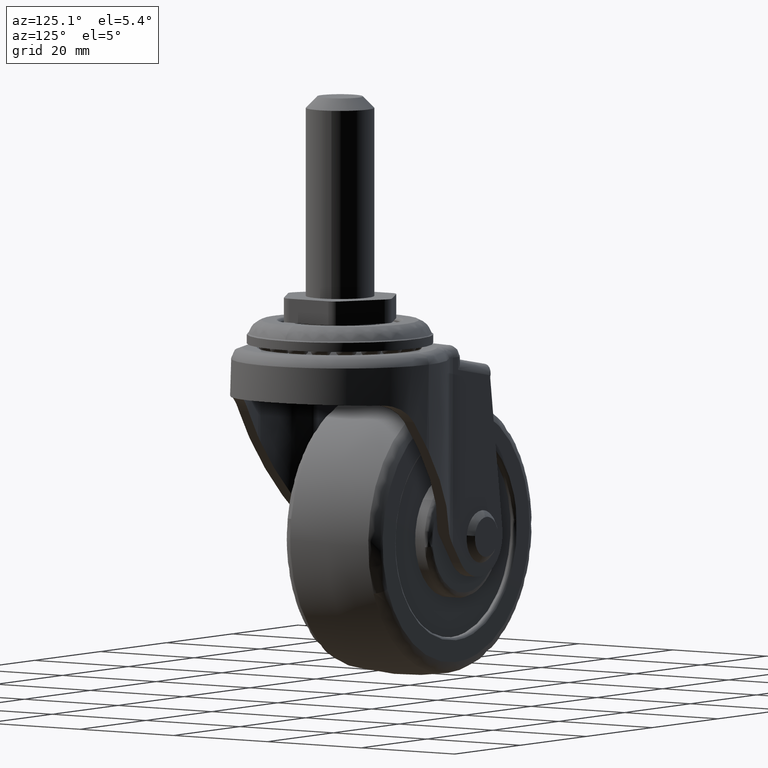
[diagram: clean part render]
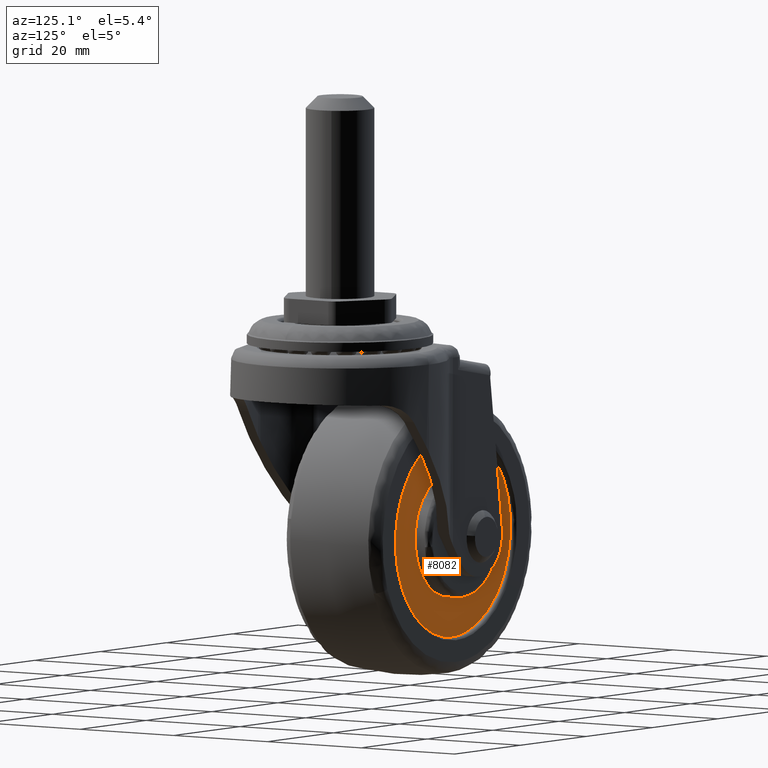
[diagram: same view with one face highlighted and labeled with its STEP entity id]
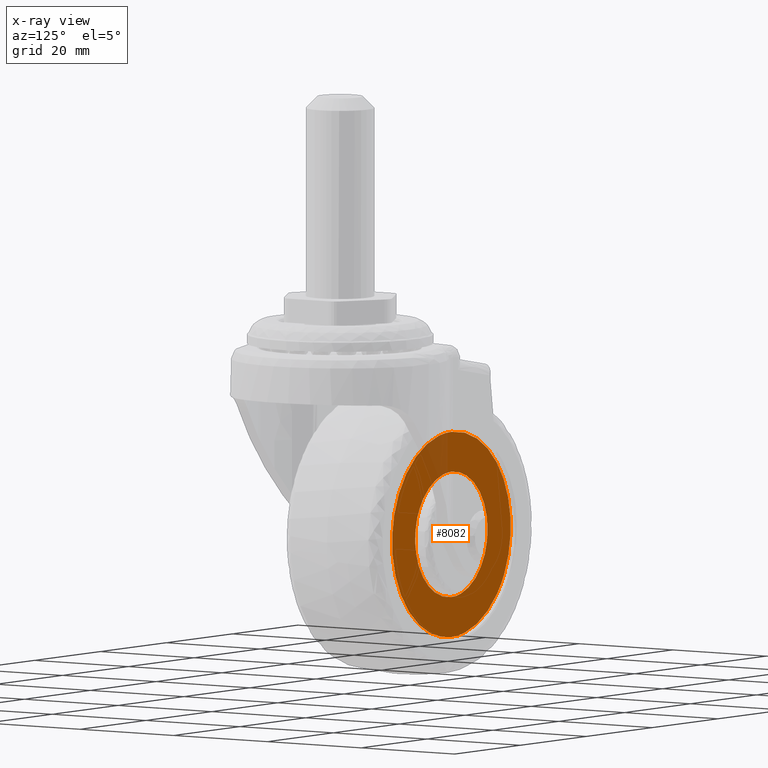
[diagram: x-ray of the same camera — body ghosted, the highlighted face saturated]
A machine part, auxiliary view. The second image highlights one B-rep face of the part: STEP entity #8082.
The next image is the same camera in x-ray: the body ghosted, the highlighted face saturated — about 7% of this face is hidden behind the body in this view.
In plain terms, the highlighted face is a freeform B-spline surface patch.
Its self-contained STEP definition (entity closure, byte-faithful):
#5860=CARTESIAN_POINT('',(9.769116370737223,9.0,-15.118345323975770));
#5861=VERTEX_POINT('',#5860);
#5867=CARTESIAN_POINT('',(0.0,9.0,18.0));
#5868=VERTEX_POINT('',#5867);
#5869=CARTESIAN_POINT('',(9.769116370737223,9.0,-15.118345323975770));
#5870=CARTESIAN_POINT('',(18.000000000000004,9.0,-9.799743434340433));
#5871=CARTESIAN_POINT('',(18.0,9.0,1.316451E-015));
#5872=CARTESIAN_POINT('',(18.000000000000007,9.0,18.000000000000007));
#5873=CARTESIAN_POINT('',(0.0,9.0,18.0));
#5881=(BOUNDED_CURVE()B_SPLINE_CURVE(2,(#5869,#5870,#5871,#5872,#5873),.UNSPECIFIED.,.F.,.U.)B_SPLINE_CURVE_WITH_KNOTS((3,2,3),(0.092934711285198,0.250000000000000,0.500000000000000),.UNSPECIFIED.)CURVE()GEOMETRIC_REPRESENTATION_ITEM()RATIONAL_B_SPLINE_CURVE((0.863190118668587,0.815986568097829,1.0,0.707106781186547,1.0))REPRESENTATION_ITEM(''));
#5882=EDGE_CURVE('',#5861,#5868,#5881,.T.);
#5884=CARTESIAN_POINT('',(-13.889245057038281,9.0,-11.449404864250431));
#5885=VERTEX_POINT('',#5884);
#5886=CARTESIAN_POINT('',(0.0,9.0,18.0));
#5887=CARTESIAN_POINT('',(-18.000000000000007,9.0,18.000000000000007));
#5888=CARTESIAN_POINT('',(-18.0,9.0,1.316451E-015));
#5889=CARTESIAN_POINT('',(-17.999999999999993,9.0,-6.462658090145814));
#5890=CARTESIAN_POINT('',(-13.889245057038281,9.0,-11.449404864250434));
#5898=(BOUNDED_CURVE()B_SPLINE_CURVE(2,(#5886,#5887,#5888,#5889,#5890),.UNSPECIFIED.,.F.,.U.)B_SPLINE_CURVE_WITH_KNOTS((3,2,3),(0.500000000000000,0.750000000000000,0.860504592096270),.UNSPECIFIED.)CURVE()GEOMETRIC_REPRESENTATION_ITEM()RATIONAL_B_SPLINE_CURVE((1.0,0.707106781186547,1.0,0.870535817309024,0.855522728212794))REPRESENTATION_ITEM(''));
#5899=EDGE_CURVE('',#5868,#5885,#5898,.T.);
#6001=CARTESIAN_POINT('',(0.0,9.0,-18.0));
#6002=VERTEX_POINT('',#6001);
#6003=CARTESIAN_POINT('',(-13.889245057038281,9.0,-11.449404864250434));
#6004=CARTESIAN_POINT('',(-8.489353594040994,9.000000000000002,-18.0));
#6005=CARTESIAN_POINT('',(0.0,9.0,-18.0));
#6013=(BOUNDED_CURVE()B_SPLINE_CURVE(2,(#6003,#6004,#6005),.UNSPECIFIED.,.F.,.U.)B_SPLINE_CURVE_WITH_KNOTS((3,3),(0.860504592096270,1.0),.UNSPECIFIED.)CURVE()GEOMETRIC_REPRESENTATION_ITEM()RATIONAL_B_SPLINE_CURVE((0.855522728212794,0.836570963877524,1.0))REPRESENTATION_ITEM(''));
#6014=EDGE_CURVE('',#5885,#6002,#6013,.T.);
#6016=CARTESIAN_POINT('',(0.0,9.0,-18.0));
#6017=CARTESIAN_POINT('',(5.309567641532233,9.000000000000002,-18.000000000000004));
#6018=CARTESIAN_POINT('',(9.769116370737223,9.0,-15.118345323975770));
#6026=(BOUNDED_CURVE()B_SPLINE_CURVE(2,(#6016,#6017,#6018),.UNSPECIFIED.,.F.,.U.)B_SPLINE_CURVE_WITH_KNOTS((3,3),(0.0,0.092934711285198),.UNSPECIFIED.)CURVE()GEOMETRIC_REPRESENTATION_ITEM()RATIONAL_B_SPLINE_CURVE((1.0,0.891120213088718,0.863190118668587))REPRESENTATION_ITEM(''));
#6027=EDGE_CURVE('',#6002,#5861,#6026,.T.);
#6119=CARTESIAN_POINT('',(8.608693535456990,9.0,6.847656213080759));
#6120=VERTEX_POINT('',#6119);
#6126=CARTESIAN_POINT('',(0.0,9.0,-11.0));
#6127=VERTEX_POINT('',#6126);
#6128=CARTESIAN_POINT('',(0.0,9.0,-11.0));
#6129=CARTESIAN_POINT('',(11.0,9.000000000000002,-10.999999999999998));
#6130=CARTESIAN_POINT('',(11.0,9.0,1.316451E-015));
#6131=CARTESIAN_POINT('',(11.0,9.0,3.841368534200995));
#6132=CARTESIAN_POINT('',(8.608693535456990,9.0,6.847656213080759));
#6140=(BOUNDED_CURVE()B_SPLINE_CURVE(2,(#6128,#6129,#6130,#6131,#6132),.UNSPECIFIED.,.F.,.U.)B_SPLINE_CURVE_WITH_KNOTS((3,2,3),(0.0,0.250000000000000,0.357863793165478),.UNSPECIFIED.)CURVE()GEOMETRIC_REPRESENTATION_ITEM()RATIONAL_B_SPLINE_CURVE((1.0,0.707106781186548,1.0,0.873629705705339,0.856305645699157))REPRESENTATION_ITEM(''));
#6141=EDGE_CURVE('',#6127,#6120,#6140,.T.);
#6143=CARTESIAN_POINT('',(-6.847659171783644,9.0,8.608691182002167));
#6144=VERTEX_POINT('',#6143);
#6145=CARTESIAN_POINT('',(-6.847659171783644,9.0,8.608691182002167));
#6146=CARTESIAN_POINT('',(-11.000000000000002,9.0,5.305771591141473));
#6147=CARTESIAN_POINT('',(-11.0,9.0,1.316451E-015));
#6148=CARTESIAN_POINT('',(-11.0,9.000000000000002,-10.999999999999998));
#6149=CARTESIAN_POINT('',(0.0,9.0,-11.0));
#6157=(BOUNDED_CURVE()B_SPLINE_CURVE(2,(#6145,#6146,#6147,#6148,#6149),.UNSPECIFIED.,.F.,.U.)B_SPLINE_CURVE_WITH_KNOTS((3,2,3),(0.607863845191168,0.750000000000000,1.0),.UNSPECIFIED.)CURVE()GEOMETRIC_REPRESENTATION_ITEM()RATIONAL_B_SPLINE_CURVE((0.856305628987436,0.833477136433096,1.0,0.707106781186548,1.0))REPRESENTATION_ITEM(''));
#6158=EDGE_CURVE('',#6144,#6127,#6157,.T.);
#6198=CARTESIAN_POINT('',(0.0,9.0,11.0));
#6199=VERTEX_POINT('',#6198);
#6200=CARTESIAN_POINT('',(0.0,9.0,11.0));
#6201=CARTESIAN_POINT('',(-3.841370655006152,9.0,11.0));
#6202=CARTESIAN_POINT('',(-6.847659171783644,9.0,8.608691182002167));
#6210=(BOUNDED_CURVE()B_SPLINE_CURVE(2,(#6200,#6201,#6202),.UNSPECIFIED.,.F.,.U.)B_SPLINE_CURVE_WITH_KNOTS((3,3),(0.500000000000000,0.607863845191168),.UNSPECIFIED.)CURVE()GEOMETRIC_REPRESENTATION_ITEM()RATIONAL_B_SPLINE_CURVE((1.0,0.873629644753452,0.856305628987436))REPRESENTATION_ITEM(''));
#6211=EDGE_CURVE('',#6199,#6144,#6210,.T.);
#6213=CARTESIAN_POINT('',(8.608693535456990,9.0,6.847656213080759));
#6214=CARTESIAN_POINT('',(5.305773921207223,9.000000000000002,11.000000000000002));
#6215=CARTESIAN_POINT('',(0.0,9.0,11.0));
#6223=(BOUNDED_CURVE()B_SPLINE_CURVE(2,(#6213,#6214,#6215),.UNSPECIFIED.,.F.,.U.)B_SPLINE_CURVE_WITH_KNOTS((3,3),(0.357863793165478,0.500000000000000),.UNSPECIFIED.)CURVE()GEOMETRIC_REPRESENTATION_ITEM()RATIONAL_B_SPLINE_CURVE((0.856305645699157,0.833477075481209,1.0))REPRESENTATION_ITEM(''));
#6224=EDGE_CURVE('',#6120,#6199,#6223,.T.);
#8065=CARTESIAN_POINT('',(-19.796578435821491,9.0,19.798199930225010));
#8066=CARTESIAN_POINT('',(-19.796578435821491,9.0,-19.798200895820258));
#8067=CARTESIAN_POINT('',(19.789610700530961,9.0,19.798199930225010));
#8068=CARTESIAN_POINT('',(19.789610700530961,9.0,-19.798200895820258));
#8069=B_SPLINE_SURFACE_WITH_KNOTS('',1,1,((#8065,#8067),(#8066,#8068)),.UNSPECIFIED.,.F.,.F.,.U.,(2,2),(2,2),(0.0,39.596400826045269),(0.0,39.586189136352452),.UNSPECIFIED.);
#8070=ORIENTED_EDGE('',*,*,#6014,.F.);
#8071=ORIENTED_EDGE('',*,*,#5899,.F.);
#8072=ORIENTED_EDGE('',*,*,#5882,.F.);
#8073=ORIENTED_EDGE('',*,*,#6027,.F.);
#8074=EDGE_LOOP('',(#8070,#8071,#8072,#8073));
#8075=FACE_OUTER_BOUND('',#8074,.T.);
#8076=ORIENTED_EDGE('',*,*,#6141,.T.);
#8077=ORIENTED_EDGE('',*,*,#6224,.T.);
#8078=ORIENTED_EDGE('',*,*,#6211,.T.);
#8079=ORIENTED_EDGE('',*,*,#6158,.T.);
#8080=EDGE_LOOP('',(#8076,#8077,#8078,#8079));
#8081=FACE_BOUND('',#8080,.T.);
#8082=ADVANCED_FACE('',(#8075,#8081),#8069,.F.);